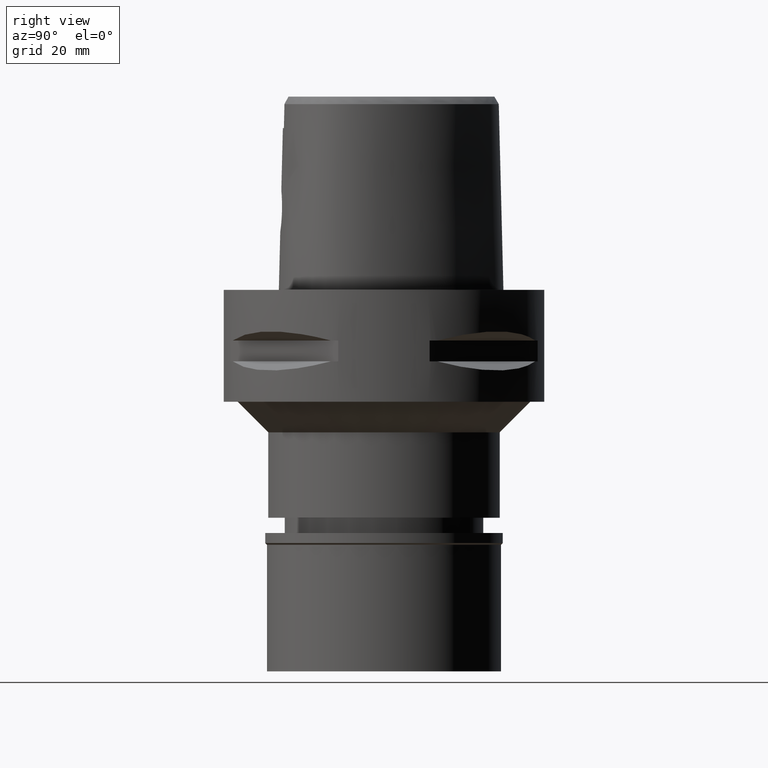
[diagram: clean part render]
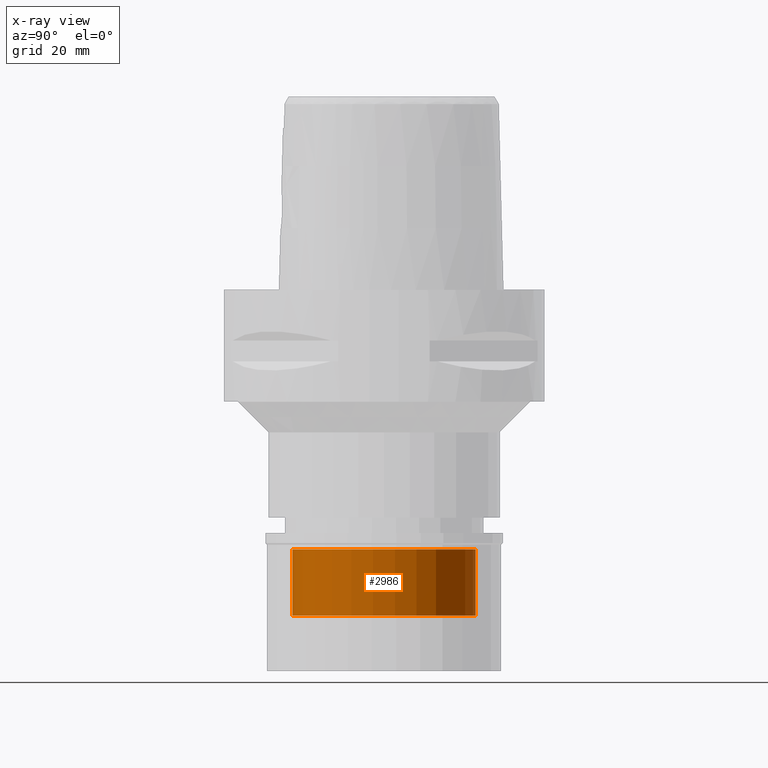
[diagram: x-ray — body ghosted, one internal face saturated and labeled with its STEP entity id]
A machine part, right view, then the same camera in x-ray: the body is ghosted and one INTERNAL B-rep face — a face not visible from any outside direction — is saturated and labeled: STEP entity #2986.
In plain terms, the highlighted cylindrical surface (partial cylindrical patch) has radius 18 mm, axis along (0, 0, -1).
Its self-contained STEP definition (entity closure, byte-faithful):
#72 = CARTESIAN_POINT ( 'NONE',  ( 0.0000000000000000000, -18.00000000000000000, -64.00000000000000000 ) ) ;
#153 = ORIENTED_EDGE ( 'NONE', *, *, #2729, .T. ) ;
#304 = CARTESIAN_POINT ( 'NONE',  ( 0.0000000000000000000, 0.0000000000000000000, -51.00000000000000000 ) ) ;
#495 = CARTESIAN_POINT ( 'NONE',  ( 0.0000000000000000000, 18.00000000000000000, -64.00000000000000000 ) ) ;
#690 = CARTESIAN_POINT ( 'NONE',  ( 0.0000000000000000000, 0.0000000000000000000, -64.00000000000000000 ) ) ;
#828 = VERTEX_POINT ( 'NONE', #495 ) ;
#1085 = EDGE_CURVE ( 'NONE', #3958, #828, #3914, .T. ) ;
#1146 = DIRECTION ( 'NONE',  ( 0.0000000000000000000, 0.0000000000000000000, -1.000000000000000000 ) ) ;
#1158 = ORIENTED_EDGE ( 'NONE', *, *, #1085, .T. ) ;
#1254 = AXIS2_PLACEMENT_3D ( 'NONE', #1294, #1636, #1589 ) ;
#1294 = CARTESIAN_POINT ( 'NONE',  ( 0.0000000000000000000, 0.0000000000000000000, 3.200000000000000178 ) ) ;
#1589 = DIRECTION ( 'NONE',  ( 0.0000000000000000000, -1.000000000000000000, 0.0000000000000000000 ) ) ;
#1636 = DIRECTION ( 'NONE',  ( 0.0000000000000000000, 0.0000000000000000000, -1.000000000000000000 ) ) ;
#1681 = CYLINDRICAL_SURFACE ( 'NONE', #1254, 18.00000000000000000 ) ;
#1729 = EDGE_CURVE ( 'NONE', #3397, #828, #1938, .T. ) ;
#1833 = VECTOR ( 'NONE', #1146, 1000.000000000000000 ) ;
#1867 = DIRECTION ( 'NONE',  ( 0.0000000000000000000, 0.0000000000000000000, 1.000000000000000000 ) ) ;
#1938 = LINE ( 'NONE', #4501, #1833 ) ;
#2221 = DIRECTION ( 'NONE',  ( 0.0000000000000000000, 0.0000000000000000000, -1.000000000000000000 ) ) ;
#2230 = EDGE_CURVE ( 'NONE', #3397, #2821, #2923, .T. ) ;
#2420 = CARTESIAN_POINT ( 'NONE',  ( 0.0000000000000000000, 18.00000000000000000, -51.00000000000000000 ) ) ;
#2720 = FACE_OUTER_BOUND ( 'NONE', #3485, .T. ) ;
#2729 = EDGE_CURVE ( 'NONE', #2821, #3958, #2982, .T. ) ;
#2821 = VERTEX_POINT ( 'NONE', #2958 ) ;
#2923 = CIRCLE ( 'NONE', #3146, 18.00000000000000000 ) ;
#2958 = CARTESIAN_POINT ( 'NONE',  ( 0.0000000000000000000, -18.00000000000000000, -51.00000000000000000 ) ) ;
#2982 = LINE ( 'NONE', #4083, #4388 ) ;
#2986 = ADVANCED_FACE ( 'NONE', ( #2720 ), #1681, .T. ) ;
#3146 = AXIS2_PLACEMENT_3D ( 'NONE', #304, #2221, #4045 ) ;
#3397 = VERTEX_POINT ( 'NONE', #2420 ) ;
#3485 = EDGE_LOOP ( 'NONE', ( #3716, #153, #1158, #3751 ) ) ;
#3716 = ORIENTED_EDGE ( 'NONE', *, *, #2230, .T. ) ;
#3751 = ORIENTED_EDGE ( 'NONE', *, *, #1729, .F. ) ;
#3914 = CIRCLE ( 'NONE', #4549, 18.00000000000000000 ) ;
#3958 = VERTEX_POINT ( 'NONE', #72 ) ;
#4005 = DIRECTION ( 'NONE',  ( 0.0000000000000000000, -1.000000000000000000, 0.0000000000000000000 ) ) ;
#4045 = DIRECTION ( 'NONE',  ( 0.0000000000000000000, 1.000000000000000000, 0.0000000000000000000 ) ) ;
#4083 = CARTESIAN_POINT ( 'NONE',  ( 0.0000000000000000000, -18.00000000000000000, -51.00000000000000000 ) ) ;
#4127 = DIRECTION ( 'NONE',  ( 0.0000000000000000000, 0.0000000000000000000, -1.000000000000000000 ) ) ;
#4388 = VECTOR ( 'NONE', #4127, 1000.000000000000000 ) ;
#4501 = CARTESIAN_POINT ( 'NONE',  ( 0.0000000000000000000, 18.00000000000000000, -51.00000000000000000 ) ) ;
#4549 = AXIS2_PLACEMENT_3D ( 'NONE', #690, #1867, #4005 ) ;